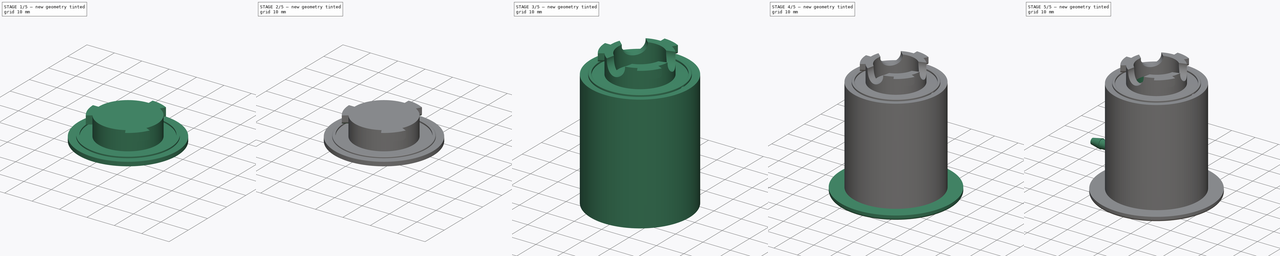
[diagram: build sequence overview — one tinted view per stage of 5, left to right]
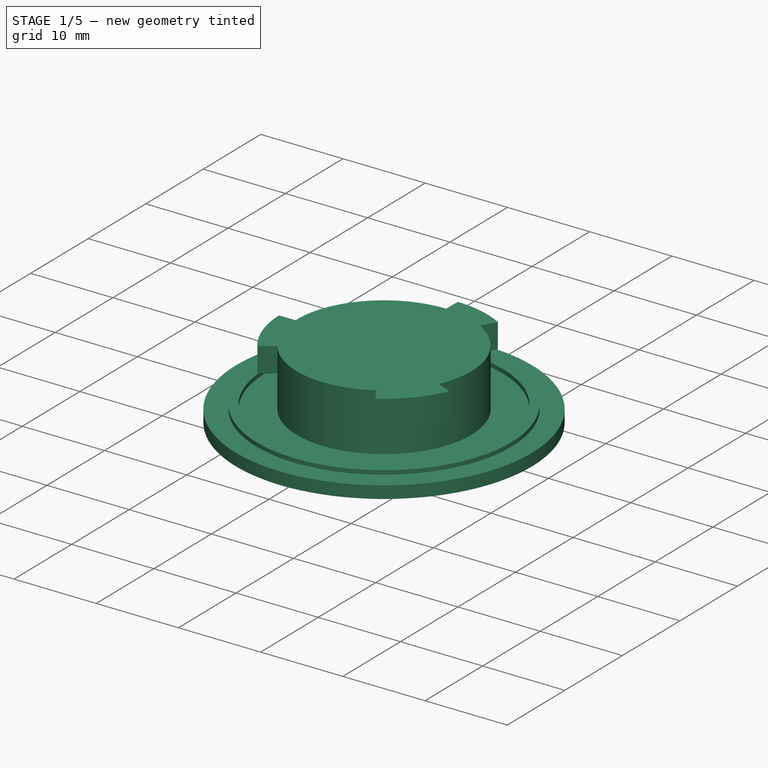
[diagram: stage 1 of 5 — iso view after this stage's code; geometry added in this stage tinted green]
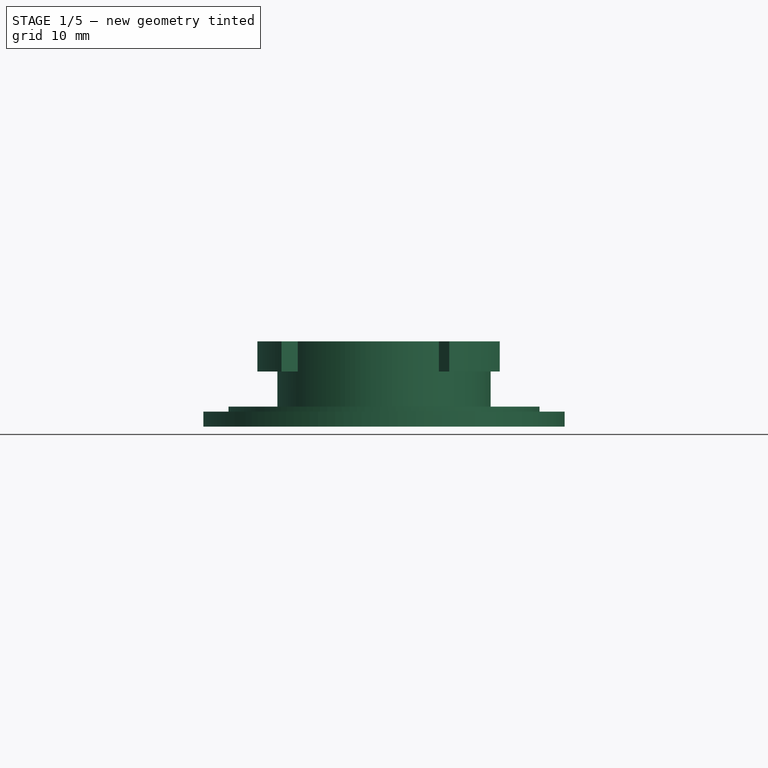
[diagram: stage 1 of 5 — front view after this stage's code; geometry added in this stage tinted green]
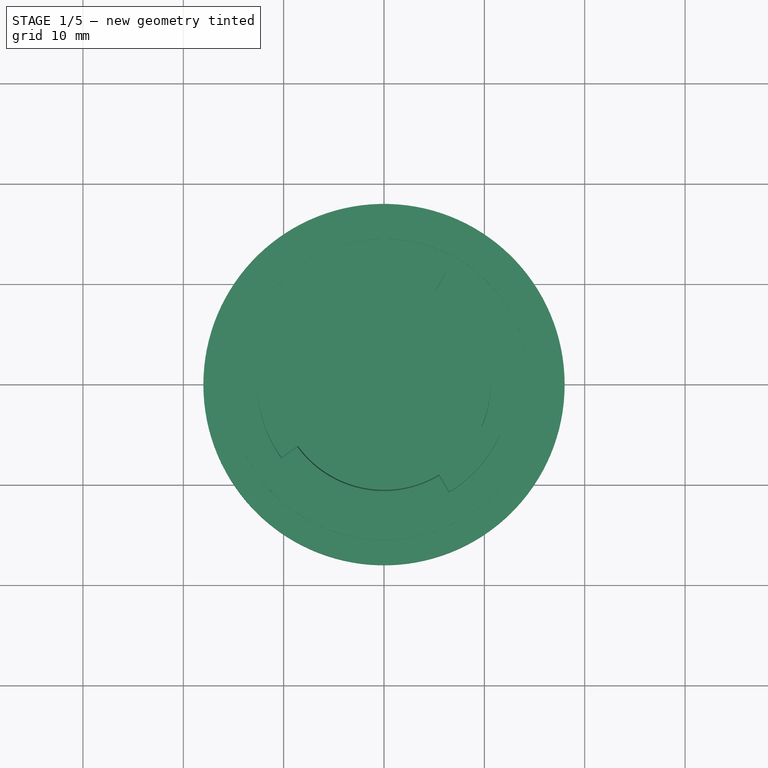
[diagram: stage 1 of 5 — top view after this stage's code; geometry added in this stage tinted green]
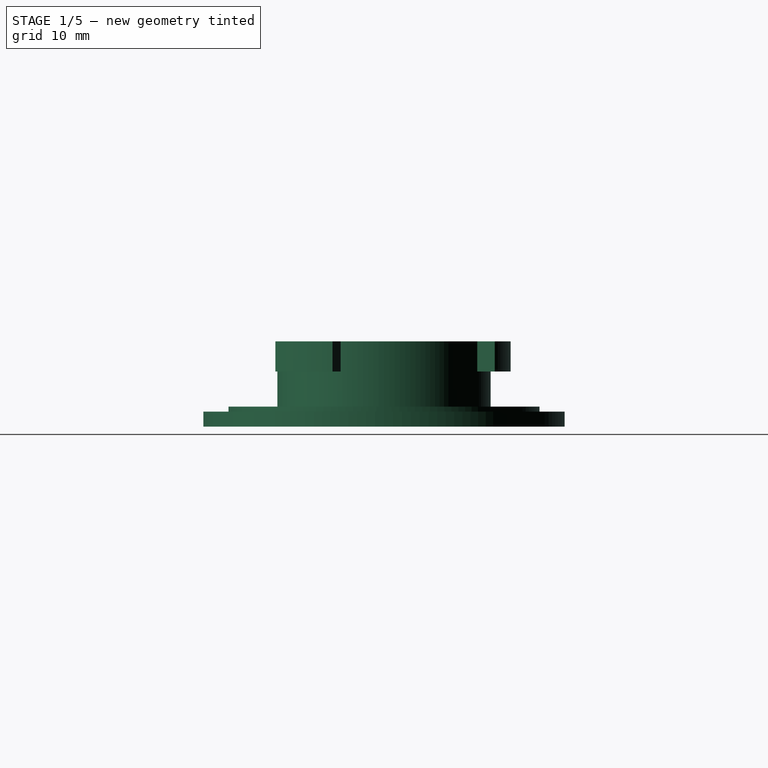
[diagram: stage 1 of 5 — right view after this stage's code; geometry added in this stage tinted green]
FCSTD DOCUMENT  (FreeCAD 0.18R4 (GitTag))
Label: PAPRtest-Portacount-BayonetFilterTester
License: All rights reserved
LicenseURL: http://en.wikipedia.org/wiki/All_rights_reserved
objects: Part::Fillet×12, Part::Cylinder×11, Part::MultiFuse×7, Sketcher::SketchObject×4, Part::Revolution×4, Part::Cut×4, Part::Cone×2, Part::FeaturePython×1
note: 45 computed .brp shape members not serialized (recipe doc carries the construction recipe); baked Part::Feature solids carry a one-line shape summary decoded from their .brp

FEATURE [Sketcher::SketchObject] Sketch041  label="BayonetTooth002"
  Placement = pos=(0,0,0) rot=(1,0,0;1.5708rad)
  sketch-geometry (4):
    g0: LineSegment StartX=9.125 StartY=8.5 StartZ=0 EndX=12.625 EndY=8.5 EndZ=0
    g1: LineSegment StartX=12.625 StartY=8.5 StartZ=0 EndX=12.625 EndY=5.5 EndZ=0
    g2: LineSegment StartX=12.625 StartY=5.5 StartZ=0 EndX=9.125 EndY=5.5 EndZ=0
    g3: LineSegment StartX=9.125 StartY=5.5 StartZ=0 EndX=9.125 EndY=8.5 EndZ=0
  constraints (12):
    c: Coincident(g0,g1)
    c: Coincident(g1,g2)
    c: Coincident(g2,g3)
    c: Coincident(g3,g0)
    c: Horizontal(g0)
    c: Horizontal(g2)
    c: Vertical(g1)
    c: Vertical(g3)
    c: DistanceY(g1,g0) = 3
    c: DistanceX(g2,g1) = 3.5
    c: DistanceY(g-1,g0) = 8.5
    c: DistanceX(g-1,g2) = 9.125
FEATURE [Sketcher::SketchObject] Sketch001  label="BayonetTooth"
  Placement = pos=(0,0,0) rot=(1,0,0;1.5708rad)
  sketch-geometry (4):
    g0: LineSegment StartX=9.125 StartY=8.5 StartZ=0 EndX=12.625 EndY=8.5 EndZ=0
    g1: LineSegment StartX=12.625 StartY=8.5 StartZ=0 EndX=12.625 EndY=5.5 EndZ=0
    g2: LineSegment StartX=12.625 StartY=5.5 StartZ=0 EndX=9.125 EndY=5.5 EndZ=0
    g3: LineSegment StartX=9.125 StartY=5.5 StartZ=0 EndX=9.125 EndY=8.5 EndZ=0
  constraints (12):
    c: Coincident(g0,g1)
    c: Coincident(g1,g2)
    c: Coincident(g2,g3)
    c: Coincident(g3,g0)
    c: Horizontal(g0)
    c: Horizontal(g2)
    c: Vertical(g1)
    c: Vertical(g3)
    c: DistanceY(g1,g0) = 3
    c: DistanceX(g2,g1) = 3.5
    c: DistanceY(g-1,g0) = 8.5
    c: DistanceX(g-1,g2) = 9.125
FEATURE [Sketcher::SketchObject] Sketch042  label="GrooveProfile001"
  Placement = pos=(0,0,0) rot=(1,0,0;1.5708rad)
  sketch-geometry (4):
    g0: LineSegment StartX=15.5 StartY=2 StartZ=0 EndX=14.5 EndY=2 EndZ=0
    g1: LineSegment StartX=14.5 StartY=2 StartZ=0 EndX=14.5 EndY=1 EndZ=0
    g2: LineSegment StartX=14.5 StartY=1 StartZ=0 EndX=15.5 EndY=1 EndZ=0
    g3: LineSegment StartX=15.5 StartY=1 StartZ=0 EndX=15.5 EndY=2 EndZ=0
  constraints (12):
    c: Coincident(g0,g1)
    c: Coincident(g1,g2)
    c: Coincident(g2,g3)
    c: Coincident(g3,g0)
    c: Horizontal(g0)
    c: Horizontal(g2)
    c: Vertical(g1)
    c: Vertical(g3)
    c: DistanceY(g1,g0) = 1
    c: Equal(g0,g1)
    c: DistanceX(g-1,g0) = 15.5
    c: DistanceY(g1,g-1) = -1
FEATURE [Sketcher::SketchObject] Sketch043  label="BayonetTooth001"
  Placement = pos=(0,0,0) rot=(1,0,0;1.5708rad)
  sketch-geometry (4):
    g0: LineSegment StartX=9.125 StartY=8.5 StartZ=0 EndX=12.625 EndY=8.5 EndZ=0
    g1: LineSegment StartX=12.625 StartY=8.5 StartZ=0 EndX=12.625 EndY=5.5 EndZ=0
    g2: LineSegment StartX=12.625 StartY=5.5 StartZ=0 EndX=9.125 EndY=5.5 EndZ=0
    g3: LineSegment StartX=9.125 StartY=5.5 StartZ=0 EndX=9.125 EndY=8.5 EndZ=0
  constraints (12):
    c: Coincident(g0,g1)
    c: Coincident(g1,g2)
    c: Coincident(g2,g3)
    c: Coincident(g3,g0)
    c: Horizontal(g0)
    c: Horizontal(g2)
    c: Vertical(g1)
    c: Vertical(g3)
    c: DistanceY(g1,g0) = 3
    c: DistanceX(g2,g1) = 3.5
    c: DistanceY(g-1,g0) = 8.5
    c: DistanceX(g-1,g2) = 9.125
FEATURE [Part::Revolution] Revolve
  Angle = 360
  Axis = (0,0,1)
  Base = (0,0,0)
  FaceMakerClass = Part::FaceMakerBullseye
  Solid = true
  Source = -> Sketch042
  Symmetric = false
FEATURE [Part::Fillet] Fillet013
  Base = -> Revolve
  Edges = 1 edges r=0.25: [Edge5]
FEATURE [Part::Revolution] Revolve002  label="ShortTooth"
  Angle = 28.4
  Axis = (0,0,1)
  Base = (0,0,0)
  FaceMakerClass = Part::FaceMakerBullseye
  Placement = pos=(0,0,0) rot=(0,0,1;1.06465rad)
  Solid = true
  Source = -> Sketch043
  Symmetric = false
FEATURE [Part::Revolution] Revolve001  label="LongTooth1"
  Angle = 35
  Axis = (0,0,1)
  Base = (0,0,0)
  FaceMakerClass = Part::FaceMakerBullseye
  Placement = pos=(0,0,0) rot=(0,0,-1;1.02974rad)
  Solid = true
  Source = -> Sketch001
  Symmetric = false
FEATURE [Part::Revolution] Revolve003  label="LongTooth2"
  Angle = 35
  Axis = (0,0,1)
  Base = (0,0,0)
  FaceMakerClass = Part::FaceMakerBullseye
  Placement = pos=(0,0,0) rot=(0,0,1;3.15905rad)
  Solid = true
  Source = -> Sketch041
  Symmetric = false
FEATURE [Part::Cylinder] Cylinder026
  Angle = 360
  AttacherType = Attacher::AttachEngine3D
  Height = 8.5
  Radius = 10.625
FEATURE [Part::Cylinder] Cylinder027
  Angle = 360
  AttacherType = Attacher::AttachEngine3D
  Height = 1.5
  Radius = 18
FEATURE [Part::MultiFuse] Fusion022  label="pFilterBayonet-Base"
  Shapes = -> [Cylinder027,Cylinder026]
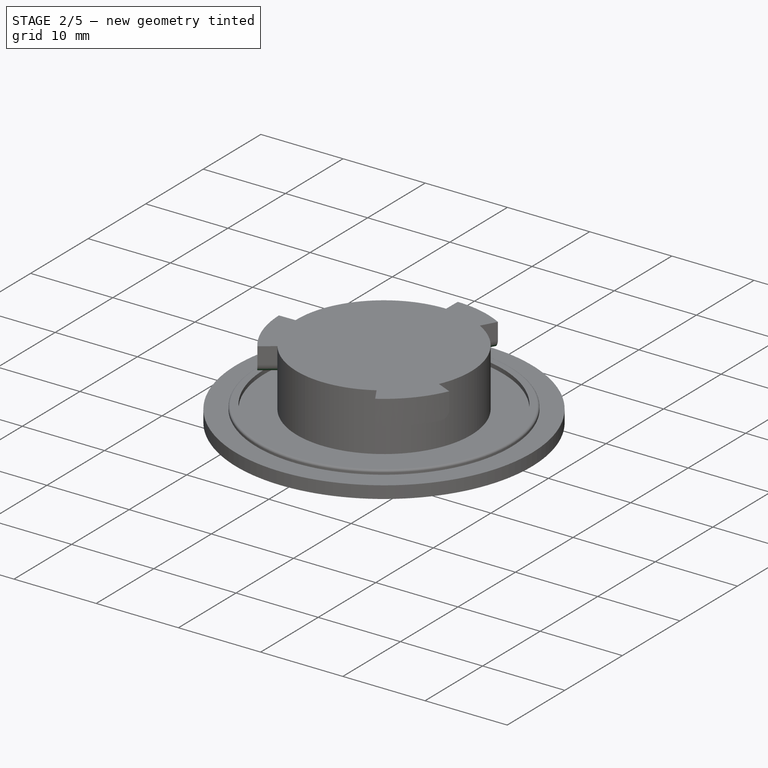
[diagram: stage 2 of 5 — iso view after this stage's code; geometry added in this stage tinted green]
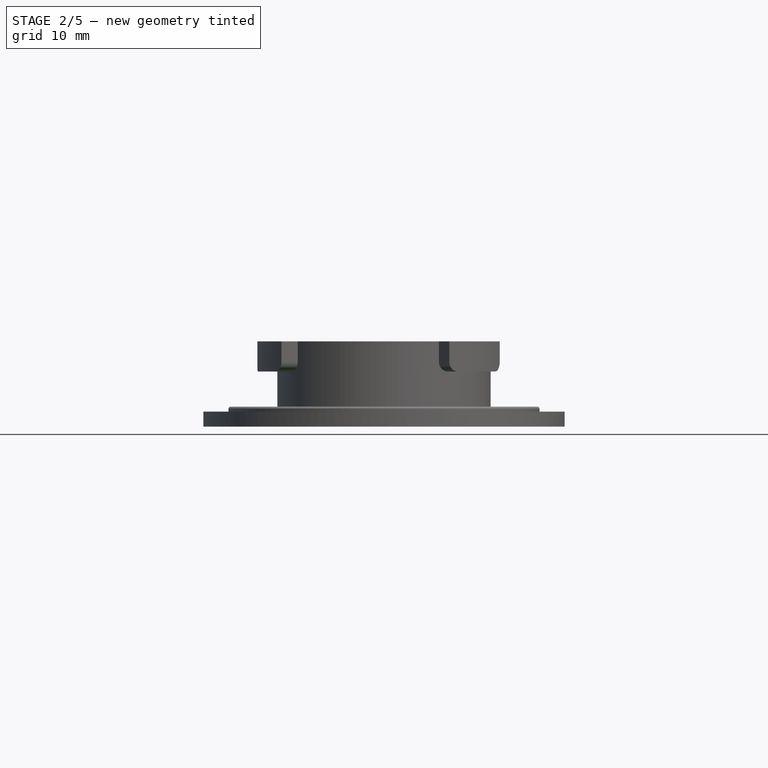
[diagram: stage 2 of 5 — front view after this stage's code; geometry added in this stage tinted green]
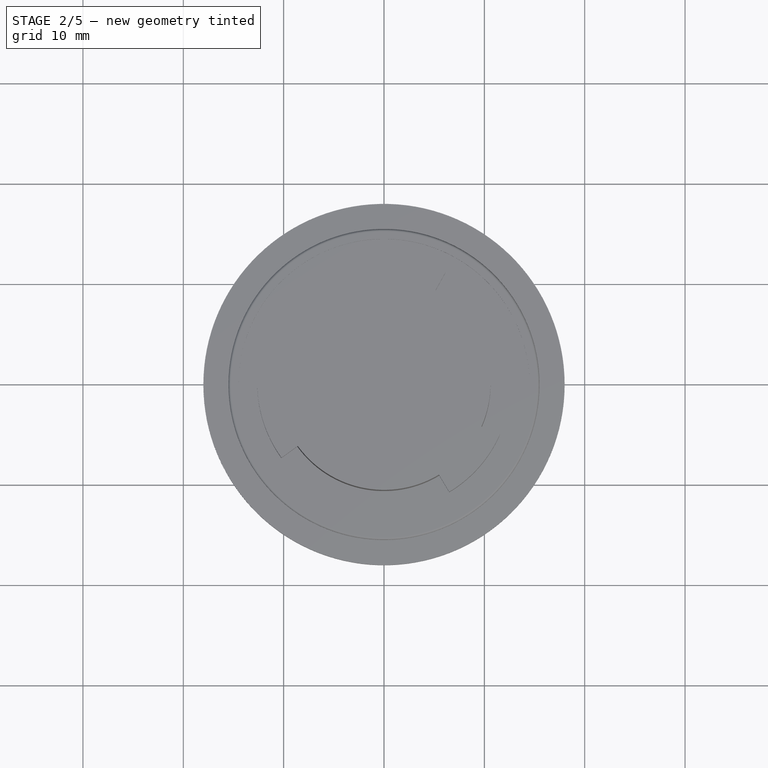
[diagram: stage 2 of 5 — top view after this stage's code; geometry added in this stage tinted green]
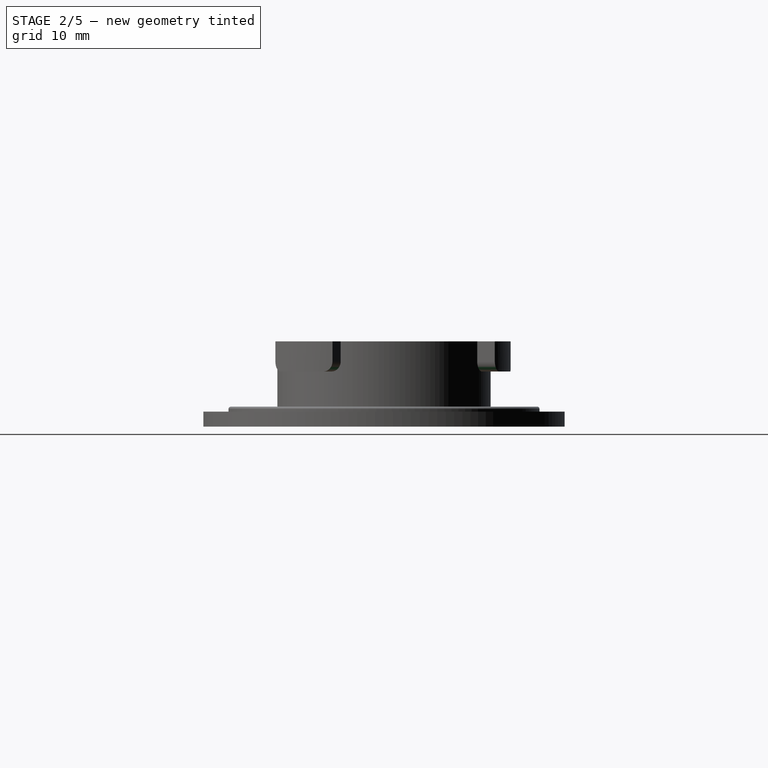
[diagram: stage 2 of 5 — right view after this stage's code; geometry added in this stage tinted green]
FEATURE [Part::Fillet] Fillet012
  Base = -> Fillet013
  Edges = 1 edges r=0.25: [Edge2]
FEATURE [Part::Fillet] Fillet008
  Base = -> Fillet012
  Edges = 1 edges r=0.25: [Edge10]
FEATURE [Part::Fillet] Fillet004
  Base = -> Revolve002
  Edges = 1 edges r=1: [Edge10]
FEATURE [Part::Fillet] Fillet005  label="pFilterBayonet-BayonetTooth2"
  Base = -> Fillet004
  Edges = 1 edges r=1: [Edge7]
FEATURE [Part::Fillet] Fillet006
  Base = -> Revolve001
  Edges = 1 edges r=1: [Edge10]
FEATURE [Part::Fillet] Fillet007  label="pFilterBayonet-BayonetTooth3"
  Base = -> Fillet006
  Edges = 1 edges r=1: [Edge7]
FEATURE [Part::Fillet] Fillet010
  Base = -> Revolve003
  Edges = 1 edges r=1: [Edge10]
FEATURE [Part::Fillet] Fillet011  label="pFilterBayonet-BayonetTooth1"
  Base = -> Fillet010
  Edges = 1 edges r=1: [Edge7]
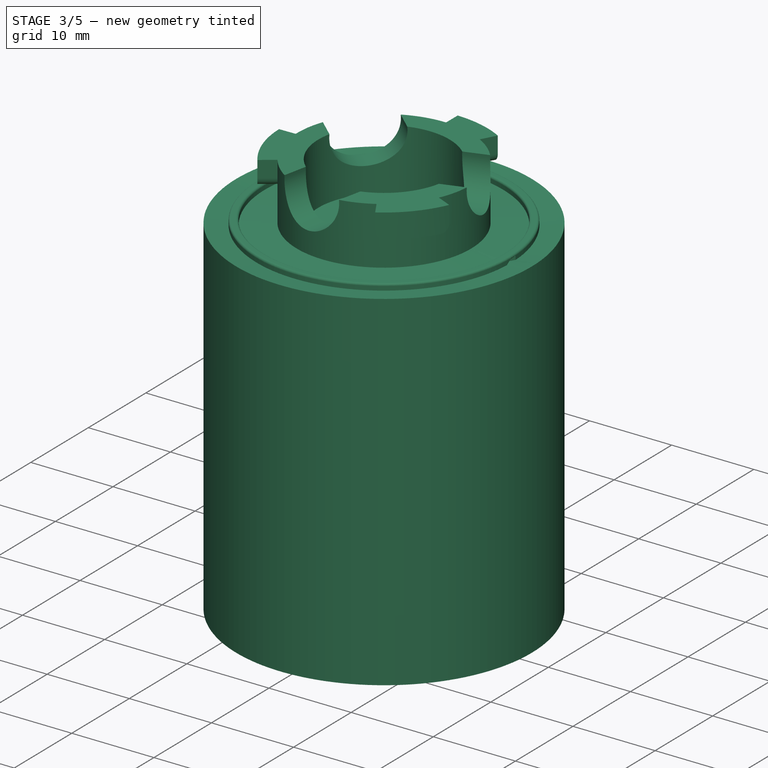
[diagram: stage 3 of 5 — iso view after this stage's code; geometry added in this stage tinted green]
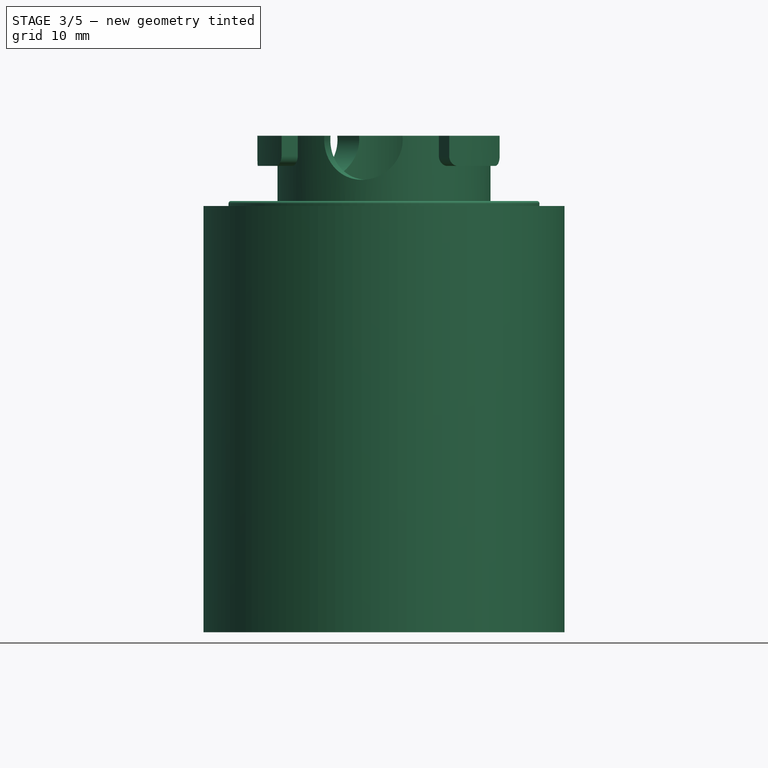
[diagram: stage 3 of 5 — front view after this stage's code; geometry added in this stage tinted green]
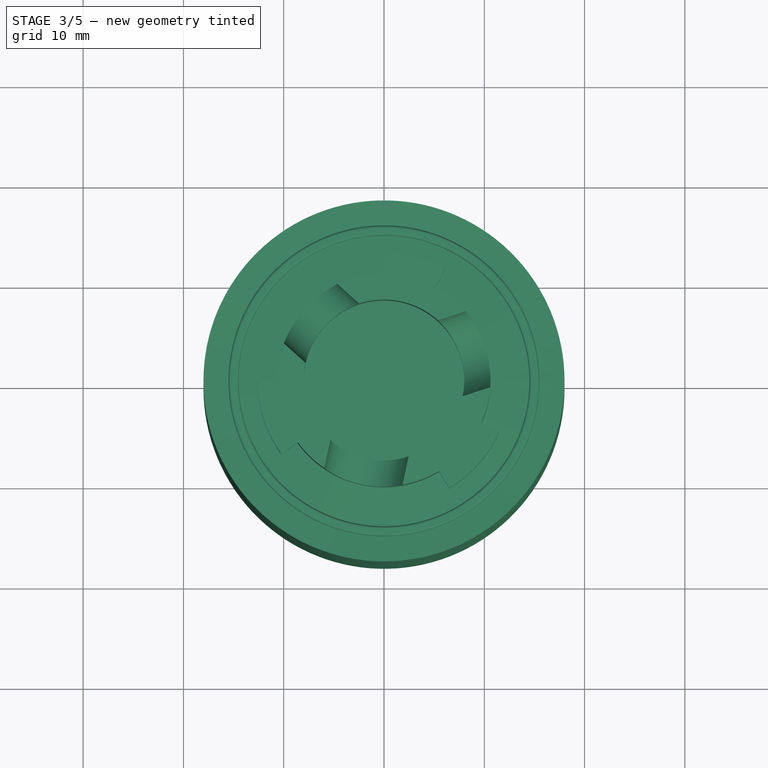
[diagram: stage 3 of 5 — top view after this stage's code; geometry added in this stage tinted green]
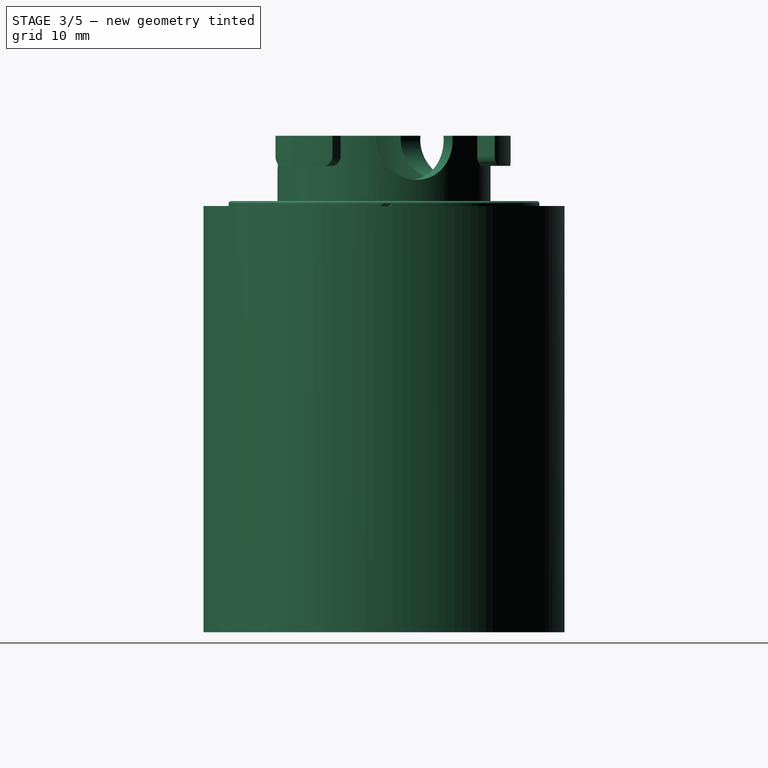
[diagram: stage 3 of 5 — right view after this stage's code; geometry added in this stage tinted green]
FEATURE [Part::Cylinder] Cylinder003  label="pBody-Chamber"
  Angle = 360
  AttacherType = Attacher::AttachEngine3D
  Height = 42
  Radius = 18
FEATURE [Part::Fillet] Fillet  label="pBody-ChamberRounded"
  Base = -> Cylinder003
  Edges = 1 edges r=1: [Edge1]
FEATURE [Part::Fillet] Fillet009  label="pFilterBayonet-GrooveRing"
  Base = -> Fillet008
  Edges = 1 edges r=0.25: [Edge8]
FEATURE [Part::Cylinder] Cylinder028  label="nFilterBayonet-Downpipe"
  Angle = 360
  AttacherType = Attacher::AttachEngine3D
  Height = 8.5
  Radius = 8
FEATURE [Part::Cylinder] Cylinder031  label="Cylinder029"
  Angle = 360
  AttacherType = Attacher::AttachEngine3D
  Height = 10
  Placement = pos=(3.3287,1.08156,22.1118) rot=(-0.154554,0.975821,0.154554;1.59527rad)
  Radius = 4
FEATURE [Part::FeaturePython] Array003  label="nFilterBayonet-FlowNotches"  # Draft array (typed FeaturePython)
  Angle = 360
  ArrayType = 1
  Axis = (0,0,1)
  Base = -> Cylinder031
  Center = (0,0,0)
  Fuse = false
  IntervalAxis = (0,0,0)
  IntervalX = (1,0,0)
  IntervalY = (0,1,0)
  IntervalZ = (0,0,1)
  NumberPolar = 3
  NumberX = 1
  NumberY = 1
  NumberZ = 1
  Placement = pos=(0,0,-14) rot=(0,0,1;0rad)
FEATURE [Part::MultiFuse] Fusion023  label="nFilterBayonet"
  Shapes = -> [Array003,Cylinder028]
FEATURE [Part::MultiFuse] Fusion024  label="pFilterBayonet"
  Shapes = -> [Fusion022,Fillet009,Fillet011,Fillet007,Fillet005]
FEATURE [Part::Cut] Cut001  label="pBody-FilterBayonet"
  Base = -> Fusion024
  Placement = pos=(0,0,41) rot=(0,0,1;0rad)
  Tool = -> Fusion023
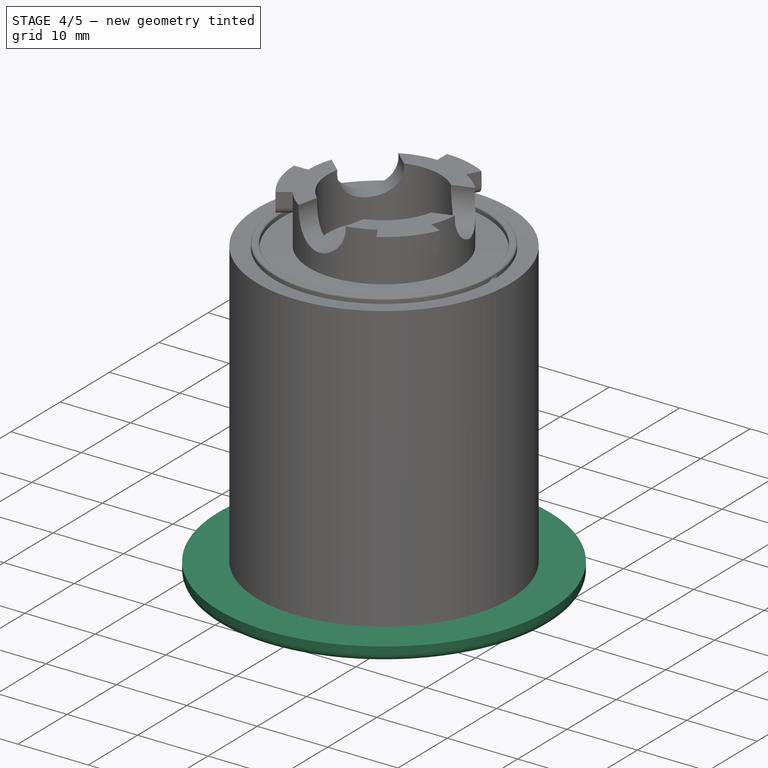
[diagram: stage 4 of 5 — iso view after this stage's code; geometry added in this stage tinted green]
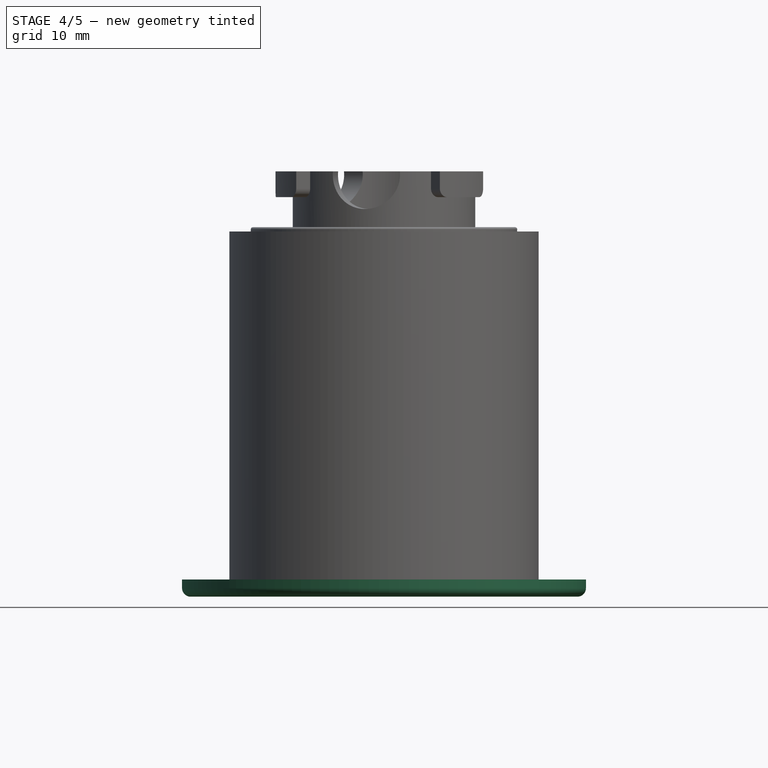
[diagram: stage 4 of 5 — front view after this stage's code; geometry added in this stage tinted green]
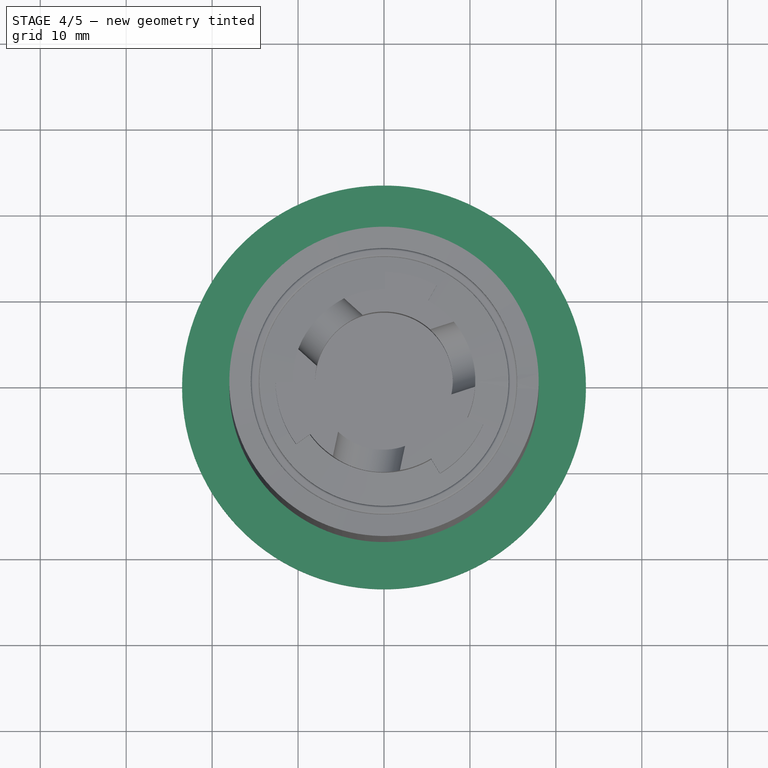
[diagram: stage 4 of 5 — top view after this stage's code; geometry added in this stage tinted green]
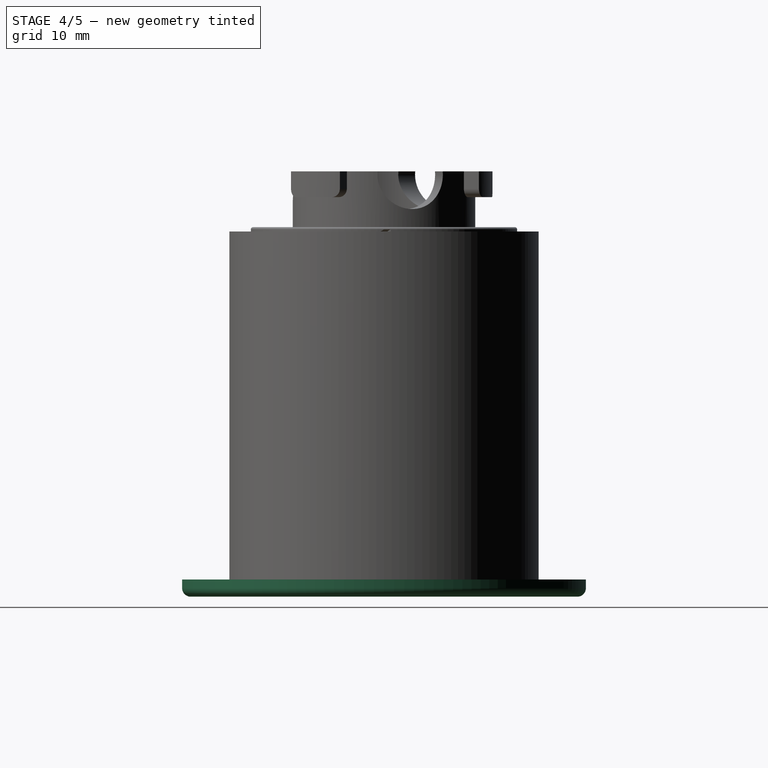
[diagram: stage 4 of 5 — right view after this stage's code; geometry added in this stage tinted green]
FEATURE [Part::Cylinder] Cylinder004  label="pBase-Upper"
  Angle = 360
  AttacherType = Attacher::AttachEngine3D
  Height = 2
  Radius = 23.5
FEATURE [Part::Cylinder] Cylinder002  label="nBody-Chamber"
  Angle = 360
  AttacherType = Attacher::AttachEngine3D
  Height = 38
  Placement = pos=(0,0,2) rot=(0,0,1;0rad)
  Radius = 16
FEATURE [Part::Fillet] Fillet001  label="pBody-Base"
  Base = -> Cylinder004
  Edges = 1 edges r=1: [Edge3]
FEATURE [Part::Cone] Cone  label="pSampleBarb-Bottom"
  Angle = 360
  AttacherType = Attacher::AttachEngine3D
  Height = 4
  Radius1 = 1.2
  Radius2 = 2
FEATURE [Part::Cylinder] Cylinder  label="pSampleBarb-Body"
  Angle = 360
  AttacherType = Attacher::AttachEngine3D
  Height = 10
  Placement = pos=(0,0,4) rot=(0,0,1;0rad)
  Radius = 1.75
FEATURE [Part::Cone] Cone001  label="pSampleBarb-Top"
  Angle = 360
  AttacherType = Attacher::AttachEngine3D
  Height = 4
  Placement = pos=(0,0,14) rot=(0,0,1;0rad)
  Radius1 = 2
  Radius2 = 1.2
FEATURE [Part::MultiFuse] Fusion  label="pBody"
  Shapes = -> [Fillet001,Fillet,Cut001]
FEATURE [Part::Cut] Cut  label="BodyMinusSampleBarb"
  Base = -> Fusion
  Tool = -> Cylinder002
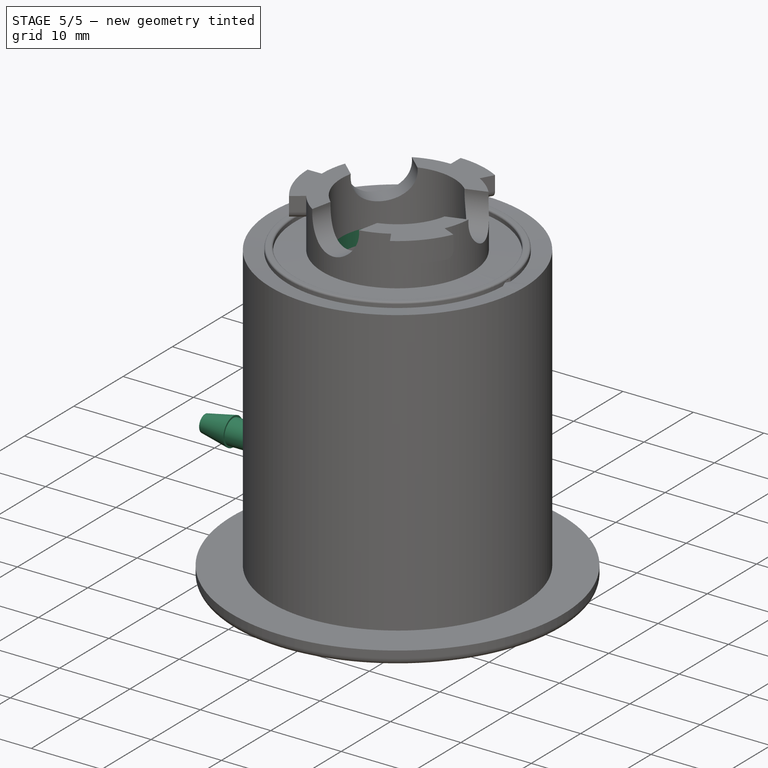
[diagram: stage 5 of 5 — iso view after this stage's code; geometry added in this stage tinted green]
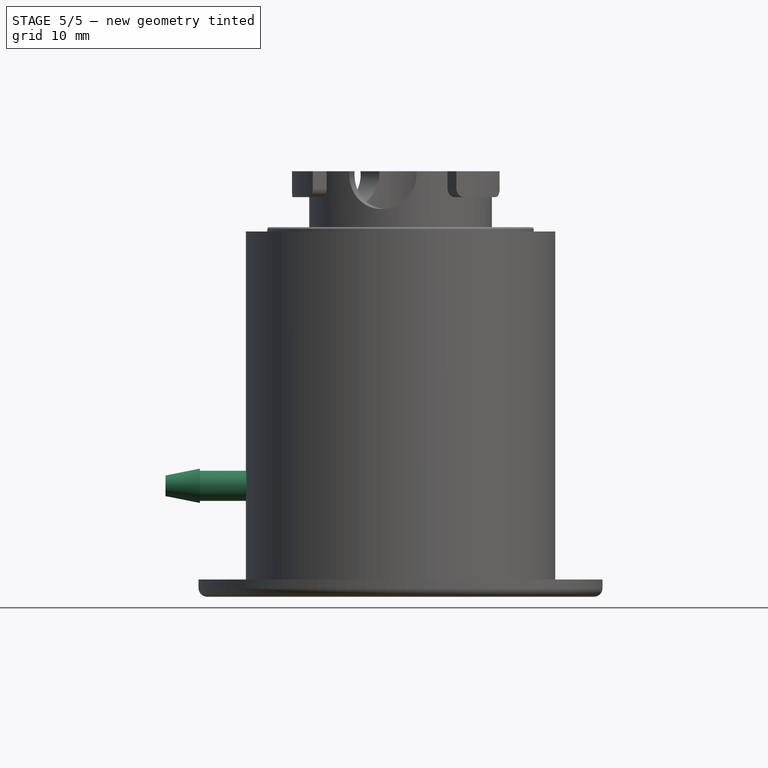
[diagram: stage 5 of 5 — front view after this stage's code; geometry added in this stage tinted green]
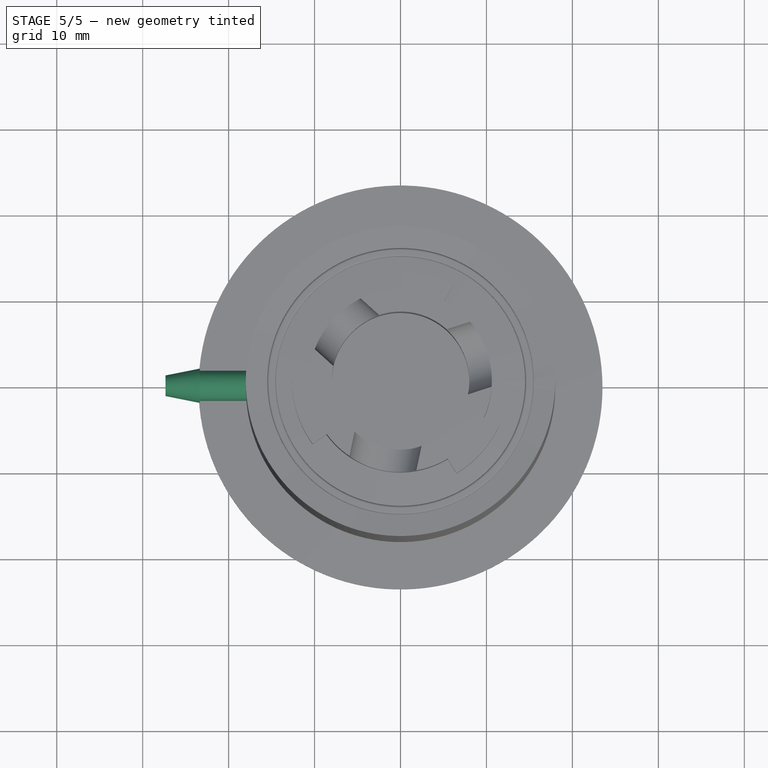
[diagram: stage 5 of 5 — top view after this stage's code; geometry added in this stage tinted green]
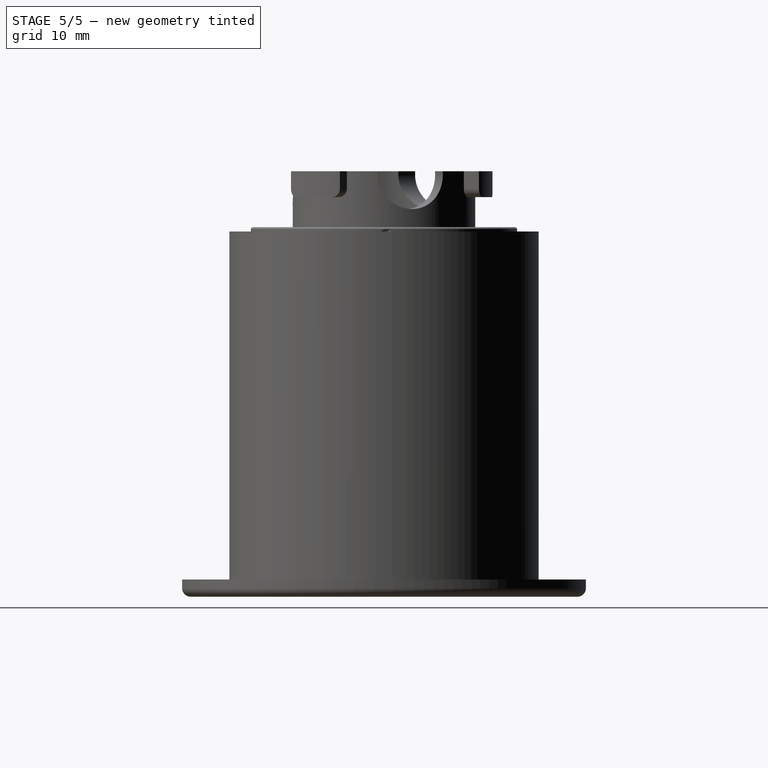
[diagram: stage 5 of 5 — right view after this stage's code; geometry added in this stage tinted green]
FEATURE [Part::Cylinder] Cylinder033  label="nSampleBarb"
  Angle = 360
  AttacherType = Attacher::AttachEngine3D
  Height = 18
  Radius = 0.8
FEATURE [Part::MultiFuse] Fusion026  label="pSampleBarb"
  Shapes = -> [Cone,Cylinder,Cone001]
FEATURE [Part::Cut] Cut002  label="SampleBarb"
  Base = -> Fusion026
  Placement = pos=(-9.34376,0,12.905) rot=(0,-1,0;1.5708rad)
  Tool = -> Cylinder033
FEATURE [Part::Cylinder] Cylinder034  label="nPassthrus-Sample"
  Angle = 360
  AttacherType = Attacher::AttachEngine3D
  Height = 18
  Placement = pos=(-9.34,0,12.9) rot=(0,-1,0;1.5708rad)
  Radius = 0.8
FEATURE [Part::Cylinder] Cylinder035  label="nPassthrus-Filter"
  Angle = 360
  AttacherType = Attacher::AttachEngine3D
  Height = 8.5
  Placement = pos=(0,0,37) rot=(0,0,1;0rad)
  Radius = 8
FEATURE [Part::MultiFuse] Fusion028  label="nPassthrus"
  Shapes = -> [Cylinder035,Cylinder034]
FEATURE [Part::MultiFuse] Fusion029  label="BodyMinusPassThrus"
  Shapes = -> [Cut,Cut002]
FEATURE [Part::Cut] Cut003  label="TopLevelPart-Portacount-BayonetFilterTester"
  Base = -> Fusion029
  Tool = -> Fusion028
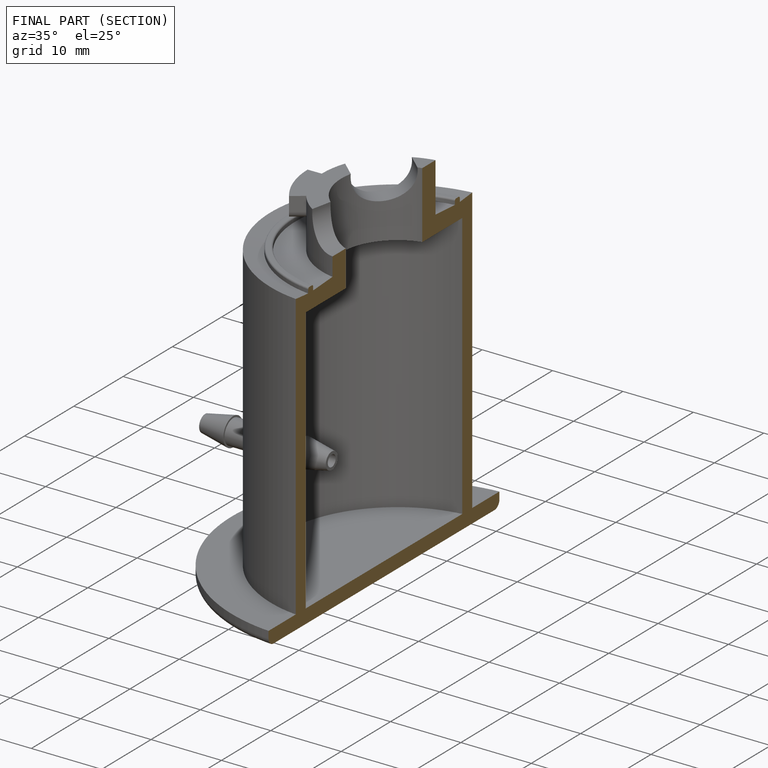
[diagram: finished part — half-section view (interior)]
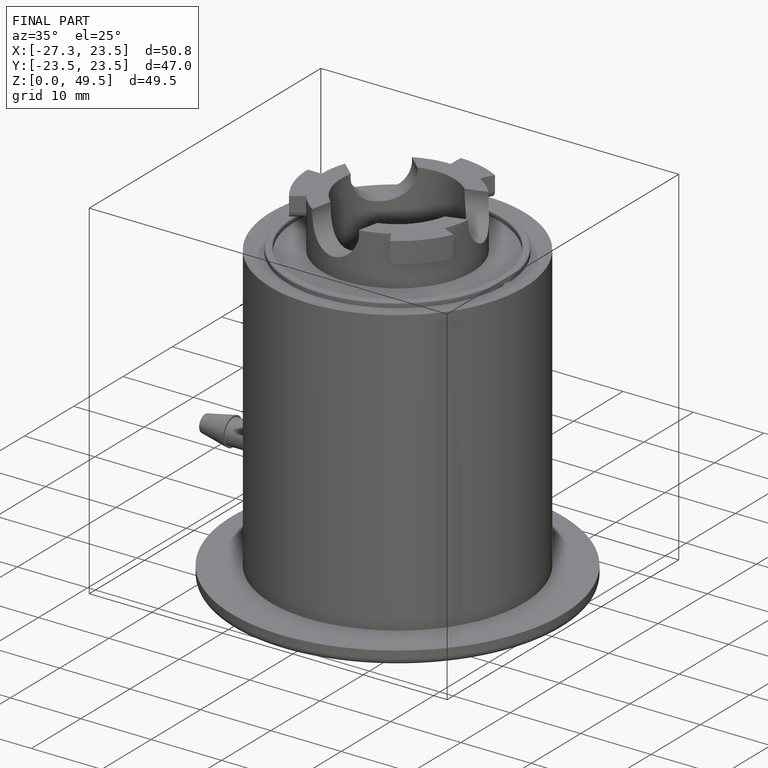
[diagram: finished part — iso view with bounding-box wireframe]
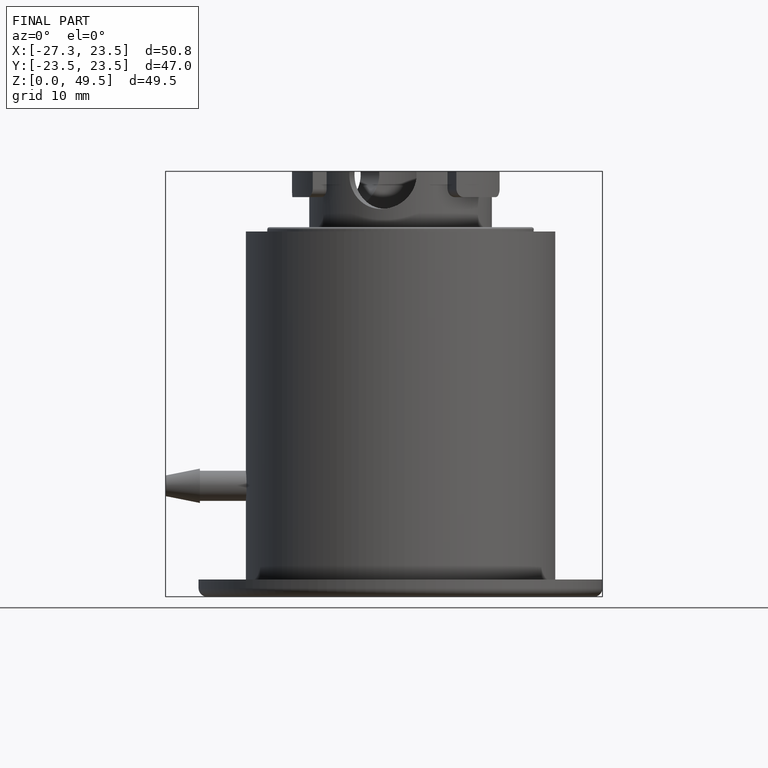
[diagram: finished part — front view with bounding-box wireframe]
